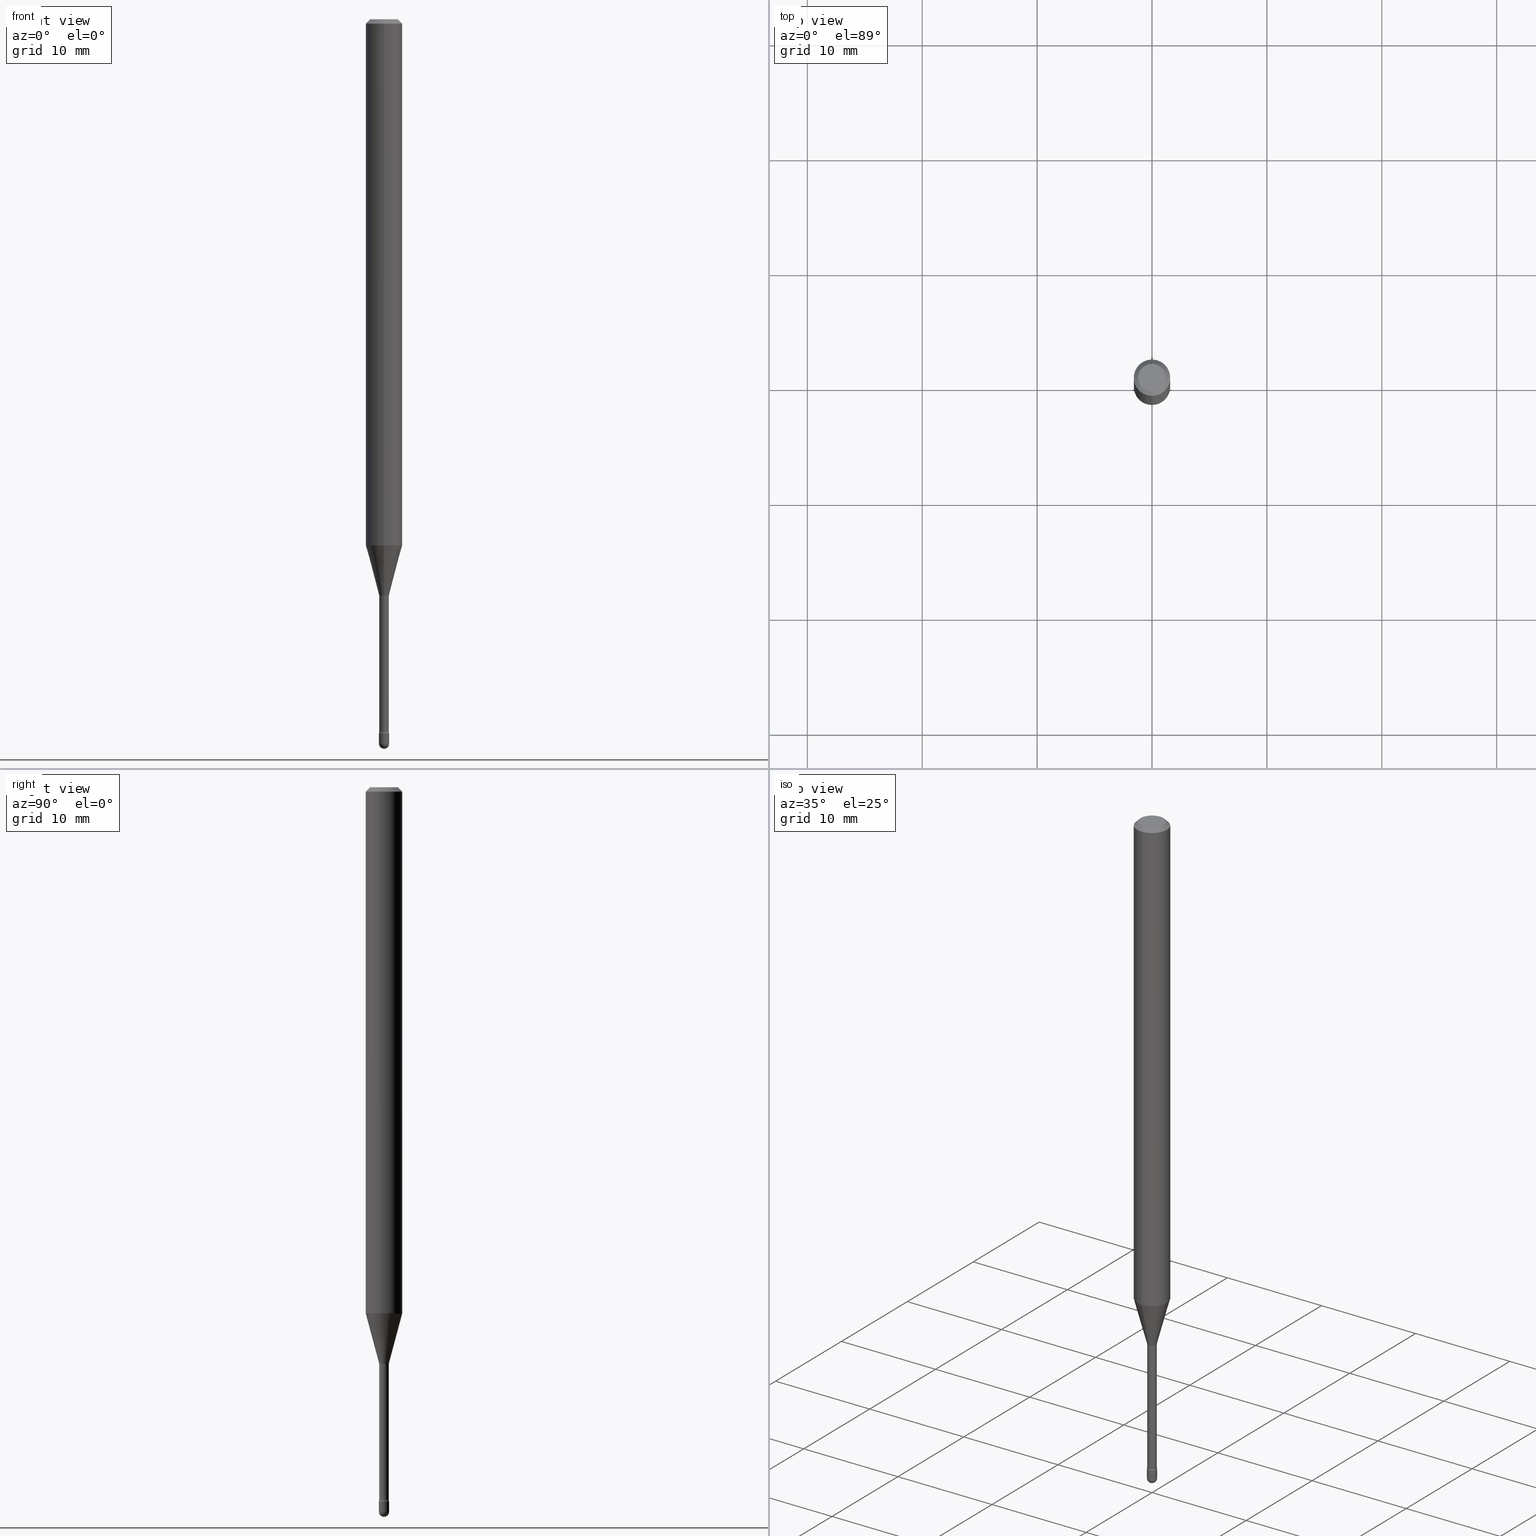
[diagram: canonical four-view strip — front | top / right | iso, engineering-drawing reading convention]
A machine part, canonical four-view strip (front | top / right | iso — engineering-drawing reading convention). The complete STEP part file that produces these views, byte-faithful:
ISO-10303-21;
HEADER;
FILE_DESCRIPTION (( 'STEP AP203' ),
    '1' );
FILE_NAME ('09449.STEP',
    '2024-04-09T23:17:30',
    ( '' ),
    ( '' ),
    'SwSTEP 2.0',
    'SolidWorks 2023',
    '' );
FILE_SCHEMA (( 'CONFIG_CONTROL_DESIGN' ));
ENDSEC;

DATA;
#1 = CARTESIAN_POINT ( 'NONE',  ( 4.409534162188952545E-29, -6.295606565068949190E-15, -1.803139060311453656 ) ) ;
#2 = LOCAL_TIME ( 19, 17, 30.00000000000000000, #509 ) ;
#3 = FACE_OUTER_BOUND ( 'NONE', #308, .T. ) ;
#4 = ORIENTED_EDGE ( 'NONE', *, *, #504, .F. ) ;
#5 = CC_DESIGN_PERSON_AND_ORGANIZATION_ASSIGNMENT ( #282, #158, ( #445 ) ) ;
#6 = DIRECTION ( 'NONE',  ( -6.982962677686265922E-15, -1.000000000000000000, 0.000000000000000000 ) ) ;
#7 = ORIENTED_EDGE ( 'NONE', *, *, #284, .T. ) ;
#8 = LINE ( 'NONE', #216, #560 ) ;
#9 = VERTEX_POINT ( 'NONE', #311 ) ;
#10 = CIRCLE ( 'NONE', #322, 0.01750000000000000860 ) ;
#11 = CIRCLE ( 'NONE', #288, 0.01500000000000002373 ) ;
#12 = DIRECTION ( 'NONE',  ( -6.982962677686265133E-15, -1.000000000000000000, 3.491470349481262275E-15 ) ) ;
#13 = ORIENTED_EDGE ( 'NONE', *, *, #284, .F. ) ;
#14 =( LENGTH_UNIT ( ) NAMED_UNIT ( * ) SI_UNIT ( $, .METRE. ) );
#15 = CARTESIAN_POINT ( 'NONE',  ( 6.070876311354602409E-29, -8.667602423678108373E-15, -2.482499999999999929 ) ) ;
#16 = CARTESIAN_POINT ( 'NONE',  ( -0.01750000000000000167, -8.481283651155627354E-15, -2.447000000000000064 ) ) ;
#17 = CIRCLE ( 'NONE', #352, 0.06250000000000000000 ) ;
#18 = CIRCLE ( 'NONE', #383, 0.01645000000000007567 ) ;
#19 = DIRECTION ( 'NONE',  ( 6.982962677686265922E-15, 1.000000000000000000, -3.483106191921935554E-15 ) ) ;
#20 = DIRECTION ( 'NONE',  ( 1.000000000000000000, -6.982962677686265922E-15, 4.876176775795936353E-29 ) ) ;
#21 = EDGE_CURVE ( 'NONE', #520, #548, #343, .T. ) ;
#22 = DIRECTION ( 'NONE',  ( -6.982962677686266711E-15, -1.000000000000000000, 0.000000000000000000 ) ) ;
#23 = ORIENTED_EDGE ( 'NONE', *, *, #204, .F. ) ;
#24 = DIRECTION ( 'NONE',  ( -2.445468806185136597E-29, 3.491481338843145583E-15, 1.000000000000000000 ) ) ;
#25 = ORIENTED_EDGE ( 'NONE', *, *, #51, .F. ) ;
#26 = VECTOR ( 'NONE', #508, 39.37007874015748143 ) ;
#27 = LOCAL_TIME ( 19, 17, 30.00000000000000000, #43 ) ;
#28 = PERSON_AND_ORGANIZATION ( #95, #334 ) ;
#29 = CC_DESIGN_DATE_AND_TIME_ASSIGNMENT ( #433, #563, ( #128 ) ) ;
#30 = UNCERTAINTY_MEASURE_WITH_UNIT (LENGTH_MEASURE( 1.000000000000000082E-05 ), #536, 'distance_accuracy_value', 'NONE');
#31 = ORIENTED_EDGE ( 'NONE', *, *, #71, .T. ) ;
#32 = DIRECTION ( 'NONE',  ( -6.982962677686265133E-15, -1.000000000000000000, 0.000000000000000000 ) ) ;
#33 = APPROVAL_STATUS ( 'not_yet_approved' ) ;
#34 = CARTESIAN_POINT ( 'NONE',  ( -0.01750000000000000167, 1.243449787580175444E-16, -8.608136407946085539E-31 ) ) ;
#35 = SHAPE_DEFINITION_REPRESENTATION ( #143, #426 ) ;
#36 = EDGE_CURVE ( 'NONE', #299, #368, #176, .T. ) ;
#37 = AXIS2_PLACEMENT_3D ( 'NONE', #154, #495, #546 ) ;
#38 = DIRECTION ( 'NONE',  ( -1.000000000000000000, 6.982962677686265922E-15, -4.883557194083112340E-29 ) ) ;
#39 = CIRCLE ( 'NONE', #451, 0.06250000000000000000 ) ;
#40 = PERSON_AND_ORGANIZATION ( #95, #334 ) ;
#41 = ADVANCED_FACE ( 'NONE', ( #232 ), #294, .T. ) ;
#42 = CARTESIAN_POINT ( 'NONE',  ( -4.287811248607203282E-16, -0.06250000000000005551, -0.01499999999999986587 ) ) ;
#43 = COORDINATED_UNIVERSAL_TIME_OFFSET ( 5, 0, .BEHIND. ) ;
#44 = VERTEX_POINT ( 'NONE', #227 ) ;
#45 = CARTESIAN_POINT ( 'NONE',  ( 2.023608659019657597E-45, -2.889053777927698999E-31, -8.274755406623474876E-17 ) ) ;
#46 = EDGE_LOOP ( 'NONE', ( #130, #552 ) ) ;
#47 = CARTESIAN_POINT ( 'NONE',  ( -1.169113584055446105E-44, 1.669184350826100908E-30, 4.780733988912460139E-16 ) ) ;
#48 = AXIS2_PLACEMENT_3D ( 'NONE', #67, #317, #276 ) ;
#49 = ORIENTED_EDGE ( 'NONE', *, *, #107, .T. ) ;
#50 = AXIS2_PLACEMENT_3D ( 'NONE', #47, #96, #485 ) ;
#51 = EDGE_CURVE ( 'NONE', #102, #446, #430, .T. ) ;
#52 = CARTESIAN_POINT ( 'NONE',  ( -0.01749999999999999820, -8.481283651155627354E-15, -2.482500000000000817 ) ) ;
#53 = ORIENTED_EDGE ( 'NONE', *, *, #340, .T. ) ;
#54 = CARTESIAN_POINT ( 'NONE',  ( 1.206146293953369389E-16, 0.01644999999999155124, -2.441486607215153537 ) ) ;
#55 = ORIENTED_EDGE ( 'NONE', *, *, #409, .T. ) ;
#56 = FACE_OUTER_BOUND ( 'NONE', #389, .T. ) ;
#57 = ORIENTED_EDGE ( 'NONE', *, *, #196, .F. ) ;
#58 = PRODUCT_DEFINITION_FORMATION_WITH_SPECIFIED_SOURCE ( 'ANY', '', #445, .NOT_KNOWN. ) ;
#59 = CIRCLE ( 'NONE', #484, 0.04749999999999999362 ) ;
#60 = DIRECTION ( 'NONE',  ( -2.445476480015523833E-29, 3.491470349481263853E-15, 1.000000000000000000 ) ) ;
#61 = CARTESIAN_POINT ( 'NONE',  ( 6.070876311354603530E-29, -8.667602423678111529E-15, -2.482500000000000817 ) ) ;
#62 = DIRECTION ( 'NONE',  ( -2.445476480015523833E-29, 3.491470349481263853E-15, 1.000000000000000000 ) ) ;
#63 = CARTESIAN_POINT ( 'NONE',  ( -1.169113584055446105E-44, 1.669184350826100908E-30, 4.780733988912460139E-16 ) ) ;
#64 = AXIS2_PLACEMENT_3D ( 'NONE', #117, #205, #121 ) ;
#65 = ADVANCED_FACE ( 'NONE', ( #275 ), #452, .T. ) ;
#66 = CIRCLE ( 'NONE', #314, 0.01696111260566398118 ) ;
#67 = CARTESIAN_POINT ( 'NONE',  ( 4.834630173357240824E-29, -6.902570577793290555E-15, -1.976974787463811056 ) ) ;
#68 = ORIENTED_EDGE ( 'NONE', *, *, #277, .T. ) ;
#69 = CARTESIAN_POINT ( 'NONE',  ( 2.023608659019657597E-45, -2.889053777927698999E-31, -8.274755406623474876E-17 ) ) ;
#70 = ORIENTED_EDGE ( 'NONE', *, *, #494, .T. ) ;
#71 = EDGE_CURVE ( 'NONE', #44, #545, #17, .T. ) ;
#72 = CARTESIAN_POINT ( 'NONE',  ( 2.823025816868956740E-16, 0.01696111260565709433, -1.973092501787273134 ) ) ;
#73 = COORDINATED_UNIVERSAL_TIME_OFFSET ( 5, 0, .BEHIND. ) ;
#74 = AXIS2_PLACEMENT_3D ( 'NONE', #522, #346, #89 ) ;
#75 = LINE ( 'NONE', #516, #549 ) ;
#76 = PERSON_AND_ORGANIZATION_ROLE ( 'creator' ) ;
#77 = VERTEX_POINT ( 'NONE', #416 ) ;
#78 = DIRECTION ( 'NONE',  ( -2.445468806185136597E-29, 3.491481338843145583E-15, 1.000000000000000000 ) ) ;
#79 = ADVANCED_FACE ( 'NONE', ( #497 ), #112, .T. ) ;
#80 = DIRECTION ( 'NONE',  ( -2.445476480015523833E-29, 3.491470349481263853E-15, 1.000000000000000000 ) ) ;
#81 = COORDINATED_UNIVERSAL_TIME_OFFSET ( 5, 0, .BEHIND. ) ;
#82 = ADVANCED_FACE ( 'NONE', ( #408 ), #541, .T. ) ;
#83 = AXIS2_PLACEMENT_3D ( 'NONE', #63, #151, #499 ) ;
#84 = LINE ( 'NONE', #34, #197 ) ;
#85 = CIRCLE ( 'NONE', #160, 0.01645000000000007567 ) ;
#86 = APPROVAL_DATE_TIME ( #379, #236 ) ;
#87 = CYLINDRICAL_SURFACE ( 'NONE', #50, 0.06250000000000000000 ) ;
#88 = ORIENTED_EDGE ( 'NONE', *, *, #272, .T. ) ;
#89 = DIRECTION ( 'NONE',  ( -6.982962677686265133E-15, -1.000000000000000000, 3.491470349481263853E-15 ) ) ;
#90 = ORIENTED_EDGE ( 'NONE', *, *, #327, .T. ) ;
#91 = DIRECTION ( 'NONE',  ( -2.445476480015523833E-29, 3.491470349481263853E-15, 1.000000000000000000 ) ) ;
#92 = VECTOR ( 'NONE', #518, 39.37007874015748143 ) ;
#93 = ORIENTED_EDGE ( 'NONE', *, *, #177, .F. ) ;
#94 = AXIS2_PLACEMENT_3D ( 'NONE', #375, #553, #328 ) ;
#95 = PERSON ( 'UNSPECIFIED', 'UNSPECIFIED', 'UNSPECIFIED', ('UNSPECIFIED'), ('UNSPECIFIED'), ('UNSPECIFIED') ) ;
#96 = DIRECTION ( 'NONE',  ( -2.445476480015523833E-29, 3.491470349481263853E-15, 1.000000000000000000 ) ) ;
#97 = EDGE_LOOP ( 'NONE', ( #461, #449, #201, #194 ) ) ;
#98 = EDGE_CURVE ( 'NONE', #545, #44, #538, .T. ) ;
#99 = DIRECTION ( 'NONE',  ( 7.105427357601001859E-15, 1.000000000000000000, 0.000000000000000000 ) ) ;
#100 = DIRECTION ( 'NONE',  ( -6.982962677686265133E-15, -1.000000000000000000, 0.000000000000000000 ) ) ;
#101 = ADVANCED_FACE ( 'NONE', ( #195 ), #106, .T. ) ;
#102 = VERTEX_POINT ( 'NONE', #111 ) ;
#103 = SECURITY_CLASSIFICATION ( '', '', #119 ) ;
#104 = CARTESIAN_POINT ( 'NONE',  ( -4.364351673553912750E-16, -0.06250000000000005551, -0.01499999999999986587 ) ) ;
#105 = DIRECTION ( 'NONE',  ( -2.445476480015523833E-29, 3.491470349481263853E-15, 1.000000000000000000 ) ) ;
#106 = CYLINDRICAL_SURFACE ( 'NONE', #511, 0.01750000000000000167 ) ;
#107 = EDGE_CURVE ( 'NONE', #102, #304, #10, .T. ) ;
#108 = CARTESIAN_POINT ( 'NONE',  ( 3.668214720023305841E-31, -5.237205524221924868E-17, -0.01500000000000008271 ) ) ;
#109 = ORIENTED_EDGE ( 'NONE', *, *, #556, .T. ) ;
#110 = AXIS2_PLACEMENT_3D ( 'NONE', #365, #316, #410 ) ;
#111 = CARTESIAN_POINT ( 'NONE',  ( 6.114420285965873807E-29, -8.727631781158610915E-15, -2.500000000000000000 ) ) ;
#112 = CYLINDRICAL_SURFACE ( 'NONE', #212, 0.01750000000000000167 ) ;
#113 = ORIENTED_EDGE ( 'NONE', *, *, #107, .F. ) ;
#114 = ORIENTED_EDGE ( 'NONE', *, *, #462, .F. ) ;
#115 = CLOSED_SHELL ( 'NONE', ( #79, #562, #436, #247, #101 ) ) ;
#116 = AXIS2_PLACEMENT_3D ( 'NONE', #398, #348, #6 ) ;
#117 = CARTESIAN_POINT ( 'NONE',  ( 2.234656903966115026E-16, 0.03144999999999151946, -2.441486607215153537 ) ) ;
#118 = DIRECTION ( 'NONE',  ( 1.000000000000000000, -6.982962677686248567E-15, 0.000000000000000000 ) ) ;
#119 = SECURITY_CLASSIFICATION_LEVEL ( 'unclassified' ) ;
#120 = CC_DESIGN_PERSON_AND_ORGANIZATION_ASSIGNMENT ( #329, #337, ( #58 ) ) ;
#121 = DIRECTION ( 'NONE',  ( 7.105427357601005014E-15, 1.000000000000000000, 0.000000000000000000 ) ) ;
#122 = APPLICATION_PROTOCOL_DEFINITION ( 'international standard', 'config_control_design', 1994, #498 ) ;
#123 = AXIS2_PLACEMENT_3D ( 'NONE', #338, #557, #118 ) ;
#124 = TOROIDAL_SURFACE ( 'NONE', #179, 0.03144999999999999879, 0.01500000000000002373 ) ;
#125 = DIRECTION ( 'NONE',  ( -6.982962677686265922E-15, -1.000000000000000000, 4.370956789862821150E-15 ) ) ;
#126 = VERTEX_POINT ( 'NONE', #16 ) ;
#127 = CC_DESIGN_APPROVAL ( #236, ( #103 ) ) ;
#128 = PRODUCT_DEFINITION ( 'UNKNOWN', '', #58, #465 ) ;
#129 = CARTESIAN_POINT ( 'NONE',  ( 4.440892098501065952E-16, 0.06249999999999369948, -1.803139060311453878 ) ) ;
#130 = ORIENTED_EDGE ( 'NONE', *, *, #404, .F. ) ;
#131 = DIRECTION ( 'NONE',  ( -2.445476480015523833E-29, 3.491470349481263853E-15, 1.000000000000000000 ) ) ;
#132 = ORIENTED_EDGE ( 'NONE', *, *, #98, .F. ) ;
#133 = CARTESIAN_POINT ( 'NONE',  ( 5.984062168735030320E-29, -8.543654836149177676E-15, -2.447000000000000064 ) ) ;
#134 = AXIS2_PLACEMENT_3D ( 'NONE', #432, #468, #245 ) ;
#135 = ORIENTED_EDGE ( 'NONE', *, *, #192, .T. ) ;
#136 = EDGE_CURVE ( 'NONE', #326, #77, #371, .T. ) ;
#137 = CARTESIAN_POINT ( 'NONE',  ( 5.970598074217557252E-29, -8.524378097747317982E-15, -2.441486607215153537 ) ) ;
#138 = ORIENTED_EDGE ( 'NONE', *, *, #327, .F. ) ;
#139 = ADVANCED_FACE ( 'NONE', ( #460 ), #287, .T. ) ;
#140 = ORIENTED_EDGE ( 'NONE', *, *, #447, .T. ) ;
#141 = DIRECTION ( 'NONE',  ( -6.982962677686265133E-15, -1.000000000000000000, 0.000000000000000000 ) ) ;
#142 = DIRECTION ( 'NONE',  ( -6.982962677686265133E-15, -1.000000000000000000, 0.000000000000000000 ) ) ;
#143 = PRODUCT_DEFINITION_SHAPE ( 'NONE', 'NONE',  #128 ) ;
#144 = AXIS2_PLACEMENT_3D ( 'NONE', #313, #453, #19 ) ;
#145 = FACE_OUTER_BOUND ( 'NONE', #459, .T. ) ;
#146 = ADVANCED_FACE ( 'NONE', ( #186 ), #458, .F. ) ;
#147 = MANIFOLD_SOLID_BREP ( 'Body-Move/Copy2[2]', #262 ) ;
#148 = LENGTH_MEASURE_WITH_UNIT ( LENGTH_MEASURE( 0.02539999999999999897 ), #14 );
#149 = CARTESIAN_POINT ( 'NONE',  ( -3.773273898774340269E-16, -0.04749999999999999362, 8.309728753412527685E-17 ) ) ;
#150 = ORIENTED_EDGE ( 'NONE', *, *, #504, .T. ) ;
#151 = DIRECTION ( 'NONE',  ( -2.445476480015523833E-29, 3.491470349481263853E-15, 1.000000000000000000 ) ) ;
#152 = AXIS2_PLACEMENT_3D ( 'NONE', #325, #105, #280 ) ;
#153 = ORIENTED_EDGE ( 'NONE', *, *, #535, .T. ) ;
#154 = CARTESIAN_POINT ( 'NONE',  ( 3.668214720023305841E-31, -5.237205524221924868E-17, -0.01500000000000008271 ) ) ;
#155 = ORIENTED_EDGE ( 'NONE', *, *, #473, .T. ) ;
#156 = CARTESIAN_POINT ( 'NONE',  ( 4.364351673553919652E-16, 0.06249999999999995143, -0.01500000000000030129 ) ) ;
#157 = CARTESIAN_POINT ( 'NONE',  ( 3.840629472727447874E-16, 0.04749999999999999362, -2.485923956665947867E-16 ) ) ;
#158 = PERSON_AND_ORGANIZATION_ROLE ( 'design_owner' ) ;
#159 = AXIS2_PLACEMENT_3D ( 'NONE', #534, #489, #100 ) ;
#160 = AXIS2_PLACEMENT_3D ( 'NONE', #137, #488, #394 ) ;
#161 = EDGE_CURVE ( 'NONE', #548, #520, #456, .T. ) ;
#162 = CARTESIAN_POINT ( 'NONE',  ( -2.196141762131736265E-16, -0.03145000000000856832, -2.441486607215153537 ) ) ;
#163 = APPROVAL_DATE_TIME ( #506, #527 ) ;
#164 = CARTESIAN_POINT ( 'NONE',  ( 6.070876311354603530E-29, -8.667602423678111529E-15, -2.482500000000000817 ) ) ;
#165 = FACE_OUTER_BOUND ( 'NONE', #355, .T. ) ;
#166 = ORIENTED_EDGE ( 'NONE', *, *, #404, .T. ) ;
#167 = ADVANCED_FACE ( 'NONE', ( #454 ), #529, .F. ) ;
#168 = AXIS2_PLACEMENT_3D ( 'NONE', #291, #78, #202 ) ;
#169 = CARTESIAN_POINT ( 'NONE',  ( 5.970598074217557252E-29, -8.524378097747317982E-15, -2.441486607215153537 ) ) ;
#170 = DIRECTION ( 'NONE',  ( -2.445476480015523833E-29, 3.491470349481263853E-15, 1.000000000000000000 ) ) ;
#171 = PLANE ( 'NONE',  #263 ) ;
#172 = ORIENTED_EDGE ( 'NONE', *, *, #21, .T. ) ;
#173 = CARTESIAN_POINT ( 'NONE',  ( 5.984080946597987231E-29, -8.543627945180652230E-15, -2.447000000000000064 ) ) ;
#174 = EDGE_LOOP ( 'NONE', ( #400, #55, #357, #349 ) ) ;
#175 = CARTESIAN_POINT ( 'NONE',  ( 6.070876311354603530E-29, -8.667602423678111529E-15, -2.482500000000000817 ) ) ;
#176 = CIRCLE ( 'NONE', #478, 0.06250000000000000000 ) ;
#177 = EDGE_CURVE ( 'NONE', #270, #178, #361, .T. ) ;
#178 = VERTEX_POINT ( 'NONE', #149 ) ;
#179 = AXIS2_PLACEMENT_3D ( 'NONE', #248, #425, #281 ) ;
#180 = DIRECTION ( 'NONE',  ( 1.839019923739598738E-15, 0.2588190451025247363, 0.9659258262890673130 ) ) ;
#181 = ORIENTED_EDGE ( 'NONE', *, *, #36, .F. ) ;
#182 = CARTESIAN_POINT ( 'NONE',  ( -4.364351673553916201E-16, -0.06250000000000000000, 6.962902957338251033E-16 ) ) ;
#183 = CARTESIAN_POINT ( 'NONE',  ( 4.825151306015764472E-29, -6.888993966774070891E-15, -1.973092501787273134 ) ) ;
#184 = ADVANCED_FACE ( 'NONE', ( #207 ), #550, .F. ) ;
#185 =( NAMED_UNIT ( * ) PLANE_ANGLE_UNIT ( ) SI_UNIT ( $, .RADIAN. ) );
#186 = FACE_OUTER_BOUND ( 'NONE', #46, .T. ) ;
#187 = AXIS2_PLACEMENT_3D ( 'NONE', #162, #38, #32 ) ;
#188 = DIRECTION ( 'NONE',  ( 1.000000000000000000, -6.982962677686305365E-15, 0.000000000000000000 ) ) ;
#189 = DIRECTION ( 'NONE',  ( -2.445476480015523833E-29, 3.491470349481263853E-15, 1.000000000000000000 ) ) ;
#190 = ORIENTED_EDGE ( 'NONE', *, *, #228, .F. ) ;
#191 = APPLICATION_CONTEXT ( 'configuration controlled 3d designs of mechanical parts and assemblies' ) ;
#192 = EDGE_CURVE ( 'NONE', #443, #548, #75, .T. ) ;
#193 = DIRECTION ( 'NONE',  ( -6.982962677686265922E-15, -1.000000000000000000, 3.491470349481263853E-15 ) ) ;
#194 = ORIENTED_EDGE ( 'NONE', *, *, #473, .F. ) ;
#195 = FACE_OUTER_BOUND ( 'NONE', #434, .T. ) ;
#196 = EDGE_CURVE ( 'NONE', #9, #126, #333, .T. ) ;
#197 = VECTOR ( 'NONE', #387, 39.37007874015748143 ) ;
#198 = CIRCLE ( 'NONE', #116, 0.01750000000000000167 ) ;
#199 = EDGE_LOOP ( 'NONE', ( #437, #88, #224, #13 ) ) ;
#200 = APPROVAL_ROLE ( '' ) ;
#201 = ORIENTED_EDGE ( 'NONE', *, *, #161, .T. ) ;
#202 = DIRECTION ( 'NONE',  ( 1.000000000000000000, -6.982962677686248567E-15, 0.000000000000000000 ) ) ;
#203 = CALENDAR_DATE ( 2024, 9, 4 ) ;
#204 = EDGE_CURVE ( 'NONE', #377, #126, #84, .T. ) ;
#205 = DIRECTION ( 'NONE',  ( 1.000000000000000000, -7.105427357601001070E-15, 4.926315373961213583E-29 ) ) ;
#206 = AXIS2_PLACEMENT_3D ( 'NONE', #537, #235, #142 ) ;
#207 = FACE_OUTER_BOUND ( 'NONE', #199, .T. ) ;
#208 = CARTESIAN_POINT ( 'NONE',  ( -1.222018468594496598E-16, -0.01750000000000852610, -2.447000000000000064 ) ) ;
#209 = ORIENTED_EDGE ( 'NONE', *, *, #234, .F. ) ;
#210 = CARTESIAN_POINT ( 'NONE',  ( 2.234656903965998176E-16, 0.03144999999999309459, -1.976974787463811056 ) ) ;
#211 = ORIENTED_EDGE ( 'NONE', *, *, #204, .T. ) ;
#212 = AXIS2_PLACEMENT_3D ( 'NONE', #551, #24, #407 ) ;
#213 = APPROVAL_PERSON_ORGANIZATION ( #475, #236, #332 ) ;
#214 = CARTESIAN_POINT ( 'NONE',  ( 4.440892098500625669E-16, 0.06250000000000000000, 2.598565020486670724E-16 ) ) ;
#215 = EDGE_LOOP ( 'NONE', ( #220, #93, #415, #31 ) ) ;
#216 = CARTESIAN_POINT ( 'NONE',  ( 1.205159535236843090E-16, 0.01696111260565709086, -1.973092501787273134 ) ) ;
#217 = EDGE_LOOP ( 'NONE', ( #439, #259, #132, #417 ) ) ;
#218 = CC_DESIGN_PERSON_AND_ORGANIZATION_ASSIGNMENT ( #381, #76, ( #58 ) ) ;
#219 = DIRECTION ( 'NONE',  ( -1.000000000000000000, 6.982962677686265922E-15, -4.883557194083112340E-29 ) ) ;
#220 = ORIENTED_EDGE ( 'NONE', *, *, #277, .F. ) ;
#221 = CARTESIAN_POINT ( 'NONE',  ( -1.169113584055446105E-44, 1.669184350826100908E-30, 4.780733988912460139E-16 ) ) ;
#222 = AXIS2_PLACEMENT_3D ( 'NONE', #335, #80, #561 ) ;
#223 = AXIS2_PLACEMENT_3D ( 'NONE', #69, #455, #544 ) ;
#224 = ORIENTED_EDGE ( 'NONE', *, *, #366, .T. ) ;
#225 = CC_DESIGN_APPROVAL ( #527, ( #128 ) ) ;
#226 = DIRECTION ( 'NONE',  ( -2.445476480015523833E-29, 3.491470349481263853E-15, 1.000000000000000000 ) ) ;
#227 = CARTESIAN_POINT ( 'NONE',  ( 4.440892098501069896E-16, 0.06249999999999995143, -0.01500000000000030129 ) ) ;
#228 = EDGE_CURVE ( 'NONE', #304, #377, #440, .T. ) ;
#229 = SPHERICAL_SURFACE ( 'NONE', #110, 0.01750000000000000860 ) ;
#230 = DIRECTION ( 'NONE',  ( -1.000000000000000000, 7.105427357601001070E-15, -4.926315508542082329E-29 ) ) ;
#231 = CARTESIAN_POINT ( 'NONE',  ( 0.01750000000000000167, -1.222018468595096625E-16, 8.533309357642889039E-31 ) ) ;
#232 = FACE_OUTER_BOUND ( 'NONE', #215, .T. ) ;
#233 = CONICAL_SURFACE ( 'NONE', #558, 0.01696111260566398118, 0.2617993877991500740 ) ;
#234 = EDGE_CURVE ( 'NONE', #270, #44, #240, .T. ) ;
#235 = DIRECTION ( 'NONE',  ( -2.445476480015523833E-29, 3.491470349481263853E-15, 1.000000000000000000 ) ) ;
#236 = APPROVAL ( #33, 'UNSPECIFIED' ) ;
#237 = EDGE_CURVE ( 'NONE', #126, #9, #418, .T. ) ;
#238 = CARTESIAN_POINT ( 'NONE',  ( 6.070876311354602409E-29, -8.667602423678108373E-15, -2.482499999999999929 ) ) ;
#239 = EDGE_LOOP ( 'NONE', ( #274, #211, #57, #391, #90 ) ) ;
#240 = LINE ( 'NONE', #156, #26 ) ;
#241 = APPLICATION_PROTOCOL_DEFINITION ( 'international standard', 'config_control_design', 1994, #191 ) ;
#242 = AXIS2_PLACEMENT_3D ( 'NONE', #321, #367, #278 ) ;
#243 = CIRCLE ( 'NONE', #353, 0.01500000000000002373 ) ;
#244 = ORIENTED_EDGE ( 'NONE', *, *, #98, .T. ) ;
#245 = DIRECTION ( 'NONE',  ( 6.982962677686265922E-15, 1.000000000000000000, 0.000000000000000000 ) ) ;
#246 = PERSON_AND_ORGANIZATION_ROLE ( 'creator' ) ;
#247 = ADVANCED_FACE ( 'NONE', ( #285 ), #559, .T. ) ;
#248 = CARTESIAN_POINT ( 'NONE',  ( 4.834630173357240824E-29, -6.902570577793290555E-15, -1.976974787463811056 ) ) ;
#249 = PERSON_AND_ORGANIZATION ( #95, #334 ) ;
#250 = LINE ( 'NONE', #42, #382 ) ;
#251 = APPROVAL_STATUS ( 'not_yet_approved' ) ;
#252 = AXIS2_PLACEMENT_3D ( 'NONE', #318, #60, #505 ) ;
#253 = AXIS2_PLACEMENT_3D ( 'NONE', #464, #293, #470 ) ;
#254 = FACE_OUTER_BOUND ( 'NONE', #395, .T. ) ;
#255 = PERSON_AND_ORGANIZATION ( #95, #334 ) ;
#256 = ORIENTED_EDGE ( 'NONE', *, *, #556, .F. ) ;
#257 = ADVANCED_FACE ( 'NONE', ( #254 ), #233, .T. ) ;
#258 = DIRECTION ( 'NONE',  ( -2.445468806185136597E-29, 3.491481338843145583E-15, 1.000000000000000000 ) ) ;
#259 = ORIENTED_EDGE ( 'NONE', *, *, #399, .T. ) ;
#260 = DIRECTION ( 'NONE',  ( -6.982962677686265922E-15, -1.000000000000000000, 0.000000000000000000 ) ) ;
#261 = ORIENTED_EDGE ( 'NONE', *, *, #272, .F. ) ;
#262 = CLOSED_SHELL ( 'NONE', ( #167, #82, #184, #543, #358, #257, #139, #65, #41, #296, #146, #336, #512, #303 ) ) ;
#263 = AXIS2_PLACEMENT_3D ( 'NONE', #133, #310, #479 ) ;
#264 = DIRECTION ( 'NONE',  ( -6.982962677686266711E-15, -1.000000000000000000, 0.000000000000000000 ) ) ;
#265 = EDGE_LOOP ( 'NONE', ( #114, #510, #53, #555 ) ) ;
#266 = EDGE_CURVE ( 'NONE', #324, #520, #378, .T. ) ;
#267 = FACE_OUTER_BOUND ( 'NONE', #491, .T. ) ;
#268 = ORIENTED_EDGE ( 'NONE', *, *, #266, .F. ) ;
#269 = DIRECTION ( 'NONE',  ( -2.445476480015523833E-29, 3.491470349481263853E-15, 1.000000000000000000 ) ) ;
#270 = VERTEX_POINT ( 'NONE', #157 ) ;
#271 = AXIS2_PLACEMENT_3D ( 'NONE', #164, #476, #419 ) ;
#272 = EDGE_CURVE ( 'NONE', #443, #397, #305, .T. ) ;
#273 = APPROVAL_PERSON_ORGANIZATION ( #40, #392, #554 ) ;
#274 = ORIENTED_EDGE ( 'NONE', *, *, #228, .T. ) ;
#275 = FACE_OUTER_BOUND ( 'NONE', #174, .T. ) ;
#276 = DIRECTION ( 'NONE',  ( -6.982962677686265133E-15, -1.000000000000000000, 3.491470349481263853E-15 ) ) ;
#277 = EDGE_CURVE ( 'NONE', #178, #545, #250, .T. ) ;
#278 = DIRECTION ( 'NONE',  ( -6.982962677686265133E-15, -1.000000000000000000, 3.491470349481262275E-15 ) ) ;
#279 = ORIENTED_EDGE ( 'NONE', *, *, #177, .T. ) ;
#280 = DIRECTION ( 'NONE',  ( -6.982962677686266711E-15, -1.000000000000000000, 0.000000000000000000 ) ) ;
#281 = DIRECTION ( 'NONE',  ( -6.982962677686265133E-15, -1.000000000000000000, 3.491470349481263853E-15 ) ) ;
#282 = PERSON_AND_ORGANIZATION ( #95, #334 ) ;
#283 = VERTEX_POINT ( 'NONE', #208 ) ;
#284 = EDGE_CURVE ( 'NONE', #324, #283, #306, .T. ) ;
#285 = FACE_OUTER_BOUND ( 'NONE', #532, .T. ) ;
#286 = DATE_AND_TIME ( #388, #2 ) ;
#287 = CONICAL_SURFACE ( 'NONE', #411, 0.01696111260566398118, 0.2617993877991500740 ) ;
#288 = AXIS2_PLACEMENT_3D ( 'NONE', #302, #219, #354 ) ;
#289 = ORIENTED_EDGE ( 'NONE', *, *, #237, .F. ) ;
#290 = DIRECTION ( 'NONE',  ( 2.445476480015523553E-29, -3.491470349481263853E-15, -1.000000000000000000 ) ) ;
#291 = CARTESIAN_POINT ( 'NONE',  ( 5.984062168735030320E-29, -8.543654836149177676E-15, -2.447000000000000064 ) ) ;
#292 = CARTESIAN_POINT ( 'NONE',  ( -4.364351673553477397E-16, -0.06250000000000631439, -1.803139060311453434 ) ) ;
#293 = DIRECTION ( 'NONE',  ( 0.000000000000000000, 0.000000000000000000, 1.000000000000000000 ) ) ;
#294 = CONICAL_SURFACE ( 'NONE', #37, 0.06250000000000000000, 0.7853981633974483900 ) ;
#295 = LOCAL_TIME ( 19, 17, 30.00000000000000000, #376 ) ;
#296 = ADVANCED_FACE ( 'NONE', ( #385 ), #331, .F. ) ;
#297 = CIRCLE ( 'NONE', #373, 0.01749999999999999820 ) ;
#298 = CARTESIAN_POINT ( 'NONE',  ( -1.243449787579568514E-16, -0.01750000000000867181, -2.482500000000000817 ) ) ;
#299 = VERTEX_POINT ( 'NONE', #292 ) ;
#300 = CARTESIAN_POINT ( 'NONE',  ( -1.184388162973373725E-16, -0.01696111260567087151, -1.973092501787273134 ) ) ;
#301 = ORIENTED_EDGE ( 'NONE', *, *, #340, .F. ) ;
#302 = CARTESIAN_POINT ( 'NONE',  ( -2.196141762131846952E-16, -0.03145000000000690299, -1.976974787463811056 ) ) ;
#303 = ADVANCED_FACE ( 'NONE', ( #165 ), #124, .F. ) ;
#304 = VERTEX_POINT ( 'NONE', #519 ) ;
#305 = CIRCLE ( 'NONE', #64, 0.01499999999999996302 ) ;
#306 = CIRCLE ( 'NONE', #187, 0.01499999999999996302 ) ;
#307 = DIRECTION ( 'NONE',  ( -6.982962677686266711E-15, -1.000000000000000000, 3.491470349481264247E-15 ) ) ;
#308 = EDGE_LOOP ( 'NONE', ( #528, #483 ) ) ;
#309 = DIMENSIONAL_EXPONENTS ( 1.000000000000000000, 0.000000000000000000, 0.000000000000000000, 0.000000000000000000, 0.000000000000000000, 0.000000000000000000, 0.000000000000000000 ) ;
#310 = DIRECTION ( 'NONE',  ( -2.438088387897960049E-29, 3.491481338843145188E-15, 1.000000000000000000 ) ) ;
#311 = CARTESIAN_POINT ( 'NONE',  ( 0.01750000000000000167, -8.665856683008687659E-15, -2.447000000000000064 ) ) ;
#312 = ORIENTED_EDGE ( 'NONE', *, *, #21, .F. ) ;
#313 = CARTESIAN_POINT ( 'NONE',  ( 3.668214720023305841E-31, -5.237205524221924868E-17, -0.01500000000000008271 ) ) ;
#314 = AXIS2_PLACEMENT_3D ( 'NONE', #482, #91, #264 ) ;
#315 = DIRECTION ( 'NONE',  ( -2.445468806185136597E-29, 3.491481338843145583E-15, 1.000000000000000000 ) ) ;
#316 = DIRECTION ( 'NONE',  ( -1.000000000000000000, 6.982962677686265922E-15, -4.883557194083112340E-29 ) ) ;
#317 = DIRECTION ( 'NONE',  ( -2.445476480015523833E-29, 3.491470349481263853E-15, 1.000000000000000000 ) ) ;
#318 = CARTESIAN_POINT ( 'NONE',  ( 3.668214720023305841E-31, -5.237205524221924868E-17, -0.01500000000000008271 ) ) ;
#319 = CC_DESIGN_PERSON_AND_ORGANIZATION_ASSIGNMENT ( #249, #246, ( #128 ) ) ;
#320 = EDGE_LOOP ( 'NONE', ( #565, #68, #244, #209 ) ) ;
#321 = CARTESIAN_POINT ( 'NONE',  ( -1.169113584055446105E-44, 1.669184350826100908E-30, 4.780733988912460139E-16 ) ) ;
#322 = AXIS2_PLACEMENT_3D ( 'NONE', #15, #414, #372 ) ;
#323 = AXIS2_PLACEMENT_3D ( 'NONE', #175, #258, #435 ) ;
#324 = VERTEX_POINT ( 'NONE', #463 ) ;
#325 = CARTESIAN_POINT ( 'NONE',  ( 4.825151306015764472E-29, -6.888993966774070891E-15, -1.973092501787273134 ) ) ;
#326 = VERTEX_POINT ( 'NONE', #72 ) ;
#327 = EDGE_CURVE ( 'NONE', #466, #304, #362, .T. ) ;
#328 = DIRECTION ( 'NONE',  ( 1.000000000000000000, -6.982962677686305365E-15, 0.000000000000000000 ) ) ;
#329 = PERSON_AND_ORGANIZATION ( #95, #334 ) ;
#330 = ORIENTED_EDGE ( 'NONE', *, *, #192, .F. ) ;
#331 = PLANE ( 'NONE',  #530 ) ;
#332 = APPROVAL_ROLE ( '' ) ;
#333 = CIRCLE ( 'NONE', #123, 0.01750000000000000167 ) ;
#334 = ORGANIZATION ( 'UNSPECIFIED', 'UNSPECIFIED', '' ) ;
#335 = CARTESIAN_POINT ( 'NONE',  ( 5.970579338663442113E-29, -8.524404928127174921E-15, -2.441486607215153537 ) ) ;
#336 = ADVANCED_FACE ( 'NONE', ( #267 ), #502, .F. ) ;
#337 = PERSON_AND_ORGANIZATION_ROLE ( 'design_supplier' ) ;
#338 = CARTESIAN_POINT ( 'NONE',  ( 5.984062168735030320E-29, -8.543654836149177676E-15, -2.447000000000000064 ) ) ;
#339 = APPROVAL_STATUS ( 'not_yet_approved' ) ;
#340 = EDGE_CURVE ( 'NONE', #77, #299, #444, .T. ) ;
#341 = CARTESIAN_POINT ( 'NONE',  ( 4.825151306015764472E-29, -6.888993966774070891E-15, -1.973092501787273134 ) ) ;
#342 = ORIENTED_EDGE ( 'NONE', *, *, #427, .T. ) ;
#343 = CIRCLE ( 'NONE', #159, 0.01644999999999999934 ) ;
#344 = MANIFOLD_SOLID_BREP ( 'Body-Move/Copy2[1]', #115 ) ;
#345 = CC_DESIGN_APPROVAL ( #392, ( #58 ) ) ;
#346 = DIRECTION ( 'NONE',  ( -2.445476480015523833E-29, 3.491470349481263853E-15, 1.000000000000000000 ) ) ;
#347 = ORIENTED_EDGE ( 'NONE', *, *, #266, .T. ) ;
#348 = DIRECTION ( 'NONE',  ( -2.445476480015523833E-29, 3.491470349481263853E-15, 1.000000000000000000 ) ) ;
#349 = ORIENTED_EDGE ( 'NONE', *, *, #71, .F. ) ;
#350 = FACE_OUTER_BOUND ( 'NONE', #217, .T. ) ;
#351 = ORIENTED_EDGE ( 'NONE', *, *, #494, .F. ) ;
#352 = AXIS2_PLACEMENT_3D ( 'NONE', #108, #62, #413 ) ;
#353 = AXIS2_PLACEMENT_3D ( 'NONE', #210, #442, #99 ) ;
#354 = DIRECTION ( 'NONE',  ( -6.982962677686266711E-15, -1.000000000000000000, 0.000000000000000000 ) ) ;
#355 = EDGE_LOOP ( 'NONE', ( #374, #351, #155, #172 ) ) ;
#356 = DIRECTION ( 'NONE',  ( -1.807323732225328562E-15, -0.2588190451025179639, 0.9659258262890690894 ) ) ;
#357 = ORIENTED_EDGE ( 'NONE', *, *, #566, .T. ) ;
#358 = ADVANCED_FACE ( 'NONE', ( #350 ), #87, .T. ) ;
#359 = CARTESIAN_POINT ( 'NONE',  ( 1.168842800325963800E-16, 0.01644999999999309515, -1.976974787463811056 ) ) ;
#360 = CARTESIAN_POINT ( 'NONE',  ( 1.222018468595694927E-16, 0.01749999999999145642, -2.447000000000000064 ) ) ;
#361 = CIRCLE ( 'NONE', #223, 0.04749999999999999362 ) ;
#362 = CIRCLE ( 'NONE', #94, 0.01749999999999999820 ) ;
#363 = DIRECTION ( 'NONE',  ( -2.445476480015523553E-29, 3.491470349481263853E-15, 1.000000000000000000 ) ) ;
#364 = LOCAL_TIME ( 19, 17, 30.00000000000000000, #81 ) ;
#365 = CARTESIAN_POINT ( 'NONE',  ( 6.070876311354602409E-29, -8.667602423678108373E-15, -2.482499999999999929 ) ) ;
#366 = EDGE_CURVE ( 'NONE', #397, #283, #198, .T. ) ;
#367 = DIRECTION ( 'NONE',  ( -2.445476480015523833E-29, 3.491470349481263853E-15, 1.000000000000000000 ) ) ;
#368 = VERTEX_POINT ( 'NONE', #129 ) ;
#369 = DIRECTION ( 'NONE',  ( -7.105427357601001859E-15, -1.000000000000000000, 0.000000000000000000 ) ) ;
#370 = EDGE_LOOP ( 'NONE', ( #342, #135, #312, #268 ) ) ;
#371 = CIRCLE ( 'NONE', #152, 0.01696111260566398118 ) ;
#372 = DIRECTION ( 'NONE',  ( 6.982962677686265922E-15, 1.000000000000000000, 0.000000000000000000 ) ) ;
#373 = AXIS2_PLACEMENT_3D ( 'NONE', #61, #542, #188 ) ;
#374 = ORIENTED_EDGE ( 'NONE', *, *, #500, .F. ) ;
#375 = CARTESIAN_POINT ( 'NONE',  ( 6.070876311354603530E-29, -8.667602423678111529E-15, -2.482500000000000817 ) ) ;
#376 = COORDINATED_UNIVERSAL_TIME_OFFSET ( 5, 0, .BEHIND. ) ;
#377 = VERTEX_POINT ( 'NONE', #52 ) ;
#378 = LINE ( 'NONE', #423, #92 ) ;
#379 = DATE_AND_TIME ( #203, #364 ) ;
#380 = DIRECTION ( 'NONE',  ( -2.445476480015523833E-29, 3.491470349481263853E-15, 1.000000000000000000 ) ) ;
#381 = PERSON_AND_ORGANIZATION ( #95, #334 ) ;
#382 = VECTOR ( 'NONE', #428, 39.37007874015748143 ) ;
#383 = AXIS2_PLACEMENT_3D ( 'NONE', #169, #226, #141 ) ;
#384 = CC_DESIGN_DATE_AND_TIME_ASSIGNMENT ( #286, #424, ( #103 ) ) ;
#385 = FACE_OUTER_BOUND ( 'NONE', #525, .T. ) ;
#386 = CALENDAR_DATE ( 2024, 9, 4 ) ;
#387 = DIRECTION ( 'NONE',  ( -2.445468806185136877E-29, 3.491481338843145188E-15, 1.000000000000000000 ) ) ;
#388 = CALENDAR_DATE ( 2024, 9, 4 ) ;
#389 = EDGE_LOOP ( 'NONE', ( #330, #153, #347, #481 ) ) ;
#390 = CARTESIAN_POINT ( 'NONE',  ( -1.148697360478907093E-16, -0.01645000000000690007, -1.976974787463811056 ) ) ;
#391 = ORIENTED_EDGE ( 'NONE', *, *, #547, .F. ) ;
#392 = APPROVAL ( #251, 'UNSPECIFIED' ) ;
#393 = VECTOR ( 'NONE', #533, 39.37007874015748143 ) ;
#394 = DIRECTION ( 'NONE',  ( -6.982962677686265133E-15, -1.000000000000000000, 0.000000000000000000 ) ) ;
#395 = EDGE_LOOP ( 'NONE', ( #70, #507, #181, #301 ) ) ;
#396 = CYLINDRICAL_SURFACE ( 'NONE', #521, 0.01645000000000003751 ) ;
#397 = VERTEX_POINT ( 'NONE', #438 ) ;
#398 = CARTESIAN_POINT ( 'NONE',  ( 5.984080946597987231E-29, -8.543627945180652230E-15, -2.447000000000000064 ) ) ;
#399 = EDGE_CURVE ( 'NONE', #368, #44, #531, .T. ) ;
#400 = ORIENTED_EDGE ( 'NONE', *, *, #399, .F. ) ;
#401 = AXIS2_PLACEMENT_3D ( 'NONE', #173, #269, #260 ) ;
#402 = DIRECTION ( 'NONE',  ( -2.445476480015523833E-29, 3.491470349481263853E-15, 1.000000000000000000 ) ) ;
#403 = CC_DESIGN_SECURITY_CLASSIFICATION ( #103, ( #58 ) ) ;
#404 = EDGE_CURVE ( 'NONE', #283, #397, #421, .T. ) ;
#405 = ORIENTED_EDGE ( 'NONE', *, *, #547, .T. ) ;
#406 = FACE_OUTER_BOUND ( 'NONE', #320, .T. ) ;
#407 = DIRECTION ( 'NONE',  ( 1.000000000000000000, -6.982962677686265922E-15, 4.876176775795936353E-29 ) ) ;
#408 = FACE_OUTER_BOUND ( 'NONE', #370, .T. ) ;
#409 = EDGE_CURVE ( 'NONE', #368, #299, #39, .T. ) ;
#410 = DIRECTION ( 'NONE',  ( 6.982962677686265922E-15, 1.000000000000000000, 0.000000000000000000 ) ) ;
#411 = AXIS2_PLACEMENT_3D ( 'NONE', #183, #189, #22 ) ;
#412 = LOCAL_TIME ( 19, 17, 30.00000000000000000, #73 ) ;
#413 = DIRECTION ( 'NONE',  ( -6.982962677686265922E-15, -1.000000000000000000, 3.483106191921935554E-15 ) ) ;
#414 = DIRECTION ( 'NONE',  ( 1.000000000000000000, -6.982962677686265922E-15, 4.883557194083112340E-29 ) ) ;
#415 = ORIENTED_EDGE ( 'NONE', *, *, #234, .T. ) ;
#416 = CARTESIAN_POINT ( 'NONE',  ( -1.184388162973373725E-16, -0.01696111260567087151, -1.973092501787273134 ) ) ;
#417 = ORIENTED_EDGE ( 'NONE', *, *, #566, .F. ) ;
#418 = CIRCLE ( 'NONE', #168, 0.01750000000000000167 ) ;
#419 = DIRECTION ( 'NONE',  ( 1.000000000000000000, -6.982962677686305365E-15, 0.000000000000000000 ) ) ;
#420 = PRODUCT_RELATED_PRODUCT_CATEGORY ( 'detail', '', ( #445 ) ) ;
#421 = CIRCLE ( 'NONE', #401, 0.01750000000000000167 ) ;
#422 = DATE_AND_TIME ( #386, #27 ) ;
#423 = CARTESIAN_POINT ( 'NONE',  ( -1.148697360479393229E-16, -0.01645000000000003751, 5.355080861402129932E-16 ) ) ;
#424 = DATE_TIME_ROLE ( 'classification_date' ) ;
#425 = DIRECTION ( 'NONE',  ( -2.445476480015523833E-29, 3.491470349481263853E-15, 1.000000000000000000 ) ) ;
#426 = ADVANCED_BREP_SHAPE_REPRESENTATION ( '09449', ( #344, #147, #253 ), #431 ) ;
#427 = EDGE_CURVE ( 'NONE', #324, #443, #85, .T. ) ;
#428 = DIRECTION ( 'NONE',  ( -4.851104656540964275E-15, -0.7071067811865500152, -0.7071067811865450192 ) ) ;
#429 = MECHANICAL_CONTEXT ( 'NONE', #498, 'mechanical' ) ;
#430 = CIRCLE ( 'NONE', #467, 0.01750000000000000860 ) ;
#431 =( GEOMETRIC_REPRESENTATION_CONTEXT ( 3 ) GLOBAL_UNCERTAINTY_ASSIGNED_CONTEXT ( ( #30 ) ) GLOBAL_UNIT_ASSIGNED_CONTEXT ( ( #536, #185, #490 ) ) REPRESENTATION_CONTEXT ( 'NONE', 'WORKASPACE' ) );
#432 = CARTESIAN_POINT ( 'NONE',  ( 6.070876311354602409E-29, -8.667602423678108373E-15, -2.482499999999999929 ) ) ;
#433 = DATE_AND_TIME ( #517, #295 ) ;
#434 = EDGE_LOOP ( 'NONE', ( #23, #150, #109, #405, #289 ) ) ;
#435 = DIRECTION ( 'NONE',  ( 1.000000000000000000, -6.982962677686305365E-15, 0.000000000000000000 ) ) ;
#436 = ADVANCED_FACE ( 'NONE', ( #3 ), #171, .T. ) ;
#437 = ORIENTED_EDGE ( 'NONE', *, *, #535, .F. ) ;
#438 = CARTESIAN_POINT ( 'NONE',  ( 1.243449787580772513E-16, 0.01749999999999143907, -2.447000000000000064 ) ) ;
#439 = ORIENTED_EDGE ( 'NONE', *, *, #36, .T. ) ;
#440 = CIRCLE ( 'NONE', #271, 0.01749999999999999820 ) ;
#441 = CIRCLE ( 'NONE', #323, 0.01749999999999999820 ) ;
#442 = DIRECTION ( 'NONE',  ( 1.000000000000000000, -7.105427357601001070E-15, 4.926315373961213583E-29 ) ) ;
#443 = VERTEX_POINT ( 'NONE', #54 ) ;
#444 = LINE ( 'NONE', #300, #514 ) ;
#445 = PRODUCT ( '09449', '09449', '', ( #429 ) ) ;
#446 = VERTEX_POINT ( 'NONE', #298 ) ;
#447 = EDGE_CURVE ( 'NONE', #178, #270, #59, .T. ) ;
#448 = CARTESIAN_POINT ( 'NONE',  ( 0.01749999999999999820, -8.727830476773153796E-15, -2.482500000000000817 ) ) ;
#449 = ORIENTED_EDGE ( 'NONE', *, *, #500, .T. ) ;
#450 = AXIS2_PLACEMENT_3D ( 'NONE', #360, #363, #193 ) ;
#451 = AXIS2_PLACEMENT_3D ( 'NONE', #524, #526, #125 ) ;
#452 = CYLINDRICAL_SURFACE ( 'NONE', #83, 0.06250000000000000000 ) ;
#453 = DIRECTION ( 'NONE',  ( 2.445476480015523833E-29, -3.491470349481263853E-15, -1.000000000000000000 ) ) ;
#454 = FACE_OUTER_BOUND ( 'NONE', #97, .T. ) ;
#455 = DIRECTION ( 'NONE',  ( -2.445476480015523833E-29, 3.491470349481263853E-15, 1.000000000000000000 ) ) ;
#456 = CIRCLE ( 'NONE', #206, 0.01644999999999999934 ) ;
#457 = CONICAL_SURFACE ( 'NONE', #144, 0.06250000000000000000, 0.7853981633974483900 ) ;
#458 = PLANE ( 'NONE',  #450 ) ;
#459 = EDGE_LOOP ( 'NONE', ( #113, #486, #4, #190 ) ) ;
#460 = FACE_OUTER_BOUND ( 'NONE', #265, .T. ) ;
#461 = ORIENTED_EDGE ( 'NONE', *, *, #136, .F. ) ;
#462 = EDGE_CURVE ( 'NONE', #326, #368, #8, .T. ) ;
#463 = CARTESIAN_POINT ( 'NONE',  ( -1.148697360478798871E-16, -0.01645000000000860010, -2.441486607215153537 ) ) ;
#464 = CARTESIAN_POINT ( 'NONE',  ( 0.000000000000000000, 0.000000000000000000, 0.000000000000000000 ) ) ;
#465 = DESIGN_CONTEXT ( 'detailed design', #191, 'design' ) ;
#466 = VERTEX_POINT ( 'NONE', #448 ) ;
#467 = AXIS2_PLACEMENT_3D ( 'NONE', #238, #230, #369 ) ;
#468 = DIRECTION ( 'NONE',  ( -1.000000000000000000, 6.982962677686265922E-15, -4.883557194083112340E-29 ) ) ;
#469 = APPROVAL_PERSON_ORGANIZATION ( #255, #527, #200 ) ;
#470 = DIRECTION ( 'NONE',  ( 1.000000000000000000, 0.000000000000000000, 0.000000000000000000 ) ) ;
#471 = DIRECTION ( 'NONE',  ( 6.982962677686265922E-15, 1.000000000000000000, -3.491470349481263853E-15 ) ) ;
#472 = PERSON_AND_ORGANIZATION_ROLE ( 'classification_officer' ) ;
#473 = EDGE_CURVE ( 'NONE', #77, #520, #11, .T. ) ;
#474 = DIRECTION ( 'NONE',  ( -6.982962677686266711E-15, -1.000000000000000000, 0.000000000000000000 ) ) ;
#475 = PERSON_AND_ORGANIZATION ( #95, #334 ) ;
#476 = DIRECTION ( 'NONE',  ( -2.445468806185136597E-29, 3.491481338843145583E-15, 1.000000000000000000 ) ) ;
#477 = CALENDAR_DATE ( 2024, 9, 4 ) ;
#478 = AXIS2_PLACEMENT_3D ( 'NONE', #1, #170, #523 ) ;
#479 = DIRECTION ( 'NONE',  ( 1.000000000000000000, -6.982962677686265922E-15, 4.876176775795935793E-29 ) ) ;
#480 = DIRECTION ( 'NONE',  ( -2.445476480015523833E-29, 3.491470349481263853E-15, 1.000000000000000000 ) ) ;
#481 = ORIENTED_EDGE ( 'NONE', *, *, #161, .F. ) ;
#482 = CARTESIAN_POINT ( 'NONE',  ( 4.825151306015764472E-29, -6.888993966774070891E-15, -1.973092501787273134 ) ) ;
#483 = ORIENTED_EDGE ( 'NONE', *, *, #237, .T. ) ;
#484 = AXIS2_PLACEMENT_3D ( 'NONE', #45, #131, #307 ) ;
#485 = DIRECTION ( 'NONE',  ( -6.982962677686265922E-15, -1.000000000000000000, 3.491470349481265036E-15 ) ) ;
#486 = ORIENTED_EDGE ( 'NONE', *, *, #51, .T. ) ;
#487 = CC_DESIGN_PERSON_AND_ORGANIZATION_ASSIGNMENT ( #28, #472, ( #103 ) ) ;
#488 = DIRECTION ( 'NONE',  ( -2.445476480015523833E-29, 3.491470349481263853E-15, 1.000000000000000000 ) ) ;
#489 = DIRECTION ( 'NONE',  ( -2.445476480015523833E-29, 3.491470349481263853E-15, 1.000000000000000000 ) ) ;
#490 =( NAMED_UNIT ( * ) SI_UNIT ( $, .STERADIAN. ) SOLID_ANGLE_UNIT ( ) );
#491 = EDGE_LOOP ( 'NONE', ( #261, #501, #7, #166 ) ) ;
#492 = VECTOR ( 'NONE', #496, 39.37007874015748143 ) ;
#493 = LINE ( 'NONE', #231, #393 ) ;
#494 = EDGE_CURVE ( 'NONE', #77, #326, #66, .T. ) ;
#495 = DIRECTION ( 'NONE',  ( 2.445476480015523833E-29, -3.491470349481263853E-15, -1.000000000000000000 ) ) ;
#496 = DIRECTION ( 'NONE',  ( -2.445476480015523833E-29, 3.491470349481263853E-15, 1.000000000000000000 ) ) ;
#497 = FACE_OUTER_BOUND ( 'NONE', #239, .T. ) ;
#498 = APPLICATION_CONTEXT ( 'configuration controlled 3d designs of mechanical parts and assemblies' ) ;
#499 = DIRECTION ( 'NONE',  ( -6.982962677686265922E-15, -1.000000000000000000, 3.491470349481265036E-15 ) ) ;
#500 = EDGE_CURVE ( 'NONE', #326, #548, #243, .T. ) ;
#501 = ORIENTED_EDGE ( 'NONE', *, *, #427, .F. ) ;
#502 = TOROIDAL_SURFACE ( 'NONE', #74, 0.03145000000000004042, 0.01499999999999996649 ) ;
#503 = CARTESIAN_POINT ( 'NONE',  ( 0.000000000000000000, 0.000000000000000000, 0.000000000000000000 ) ) ;
#504 = EDGE_CURVE ( 'NONE', #377, #446, #441, .T. ) ;
#505 = DIRECTION ( 'NONE',  ( -6.982962677686265922E-15, -1.000000000000000000, 3.483106191921935554E-15 ) ) ;
#506 = DATE_AND_TIME ( #477, #412 ) ;
#507 = ORIENTED_EDGE ( 'NONE', *, *, #462, .T. ) ;
#508 = DIRECTION ( 'NONE',  ( 4.937700262164548042E-15, 0.7071067811865451302, -0.7071067811865499042 ) ) ;
#509 = COORDINATED_UNIVERSAL_TIME_OFFSET ( 5, 0, .BEHIND. ) ;
#510 = ORIENTED_EDGE ( 'NONE', *, *, #136, .T. ) ;
#511 = AXIS2_PLACEMENT_3D ( 'NONE', #503, #315, #20 ) ;
#512 = ADVANCED_FACE ( 'NONE', ( #56 ), #396, .T. ) ;
#513 = CARTESIAN_POINT ( 'NONE',  ( 3.316907271900976096E-16, 0.04749999999999999362, 3.181808081214563162E-17 ) ) ;
#514 = VECTOR ( 'NONE', #356, 39.37007874015748854 ) ;
#515 = APPROVAL_DATE_TIME ( #422, #392 ) ;
#516 = CARTESIAN_POINT ( 'NONE',  ( 1.168842800325367224E-16, 0.01645000000000003751, 4.206387116422791825E-16 ) ) ;
#517 = CALENDAR_DATE ( 2024, 9, 4 ) ;
#518 = DIRECTION ( 'NONE',  ( -2.445476480015523833E-29, 3.491470349481263853E-15, 1.000000000000000000 ) ) ;
#519 = CARTESIAN_POINT ( 'NONE',  ( 1.222018468595703801E-16, 0.01749999999999133499, -2.482500000000000817 ) ) ;
#520 = VERTEX_POINT ( 'NONE', #390 ) ;
#521 = AXIS2_PLACEMENT_3D ( 'NONE', #221, #402, #12 ) ;
#522 = CARTESIAN_POINT ( 'NONE',  ( 5.970579338663442113E-29, -8.524404928127174921E-15, -2.441486607215153537 ) ) ;
#523 = DIRECTION ( 'NONE',  ( -6.982962677686265922E-15, -1.000000000000000000, 4.370956789862821150E-15 ) ) ;
#524 = CARTESIAN_POINT ( 'NONE',  ( 4.409534162188952545E-29, -6.295606565068949190E-15, -1.803139060311453656 ) ) ;
#525 = EDGE_LOOP ( 'NONE', ( #279, #140 ) ) ;
#526 = DIRECTION ( 'NONE',  ( -2.445476480015523833E-29, 3.491470349481263853E-15, 1.000000000000000000 ) ) ;
#527 = APPROVAL ( #339, 'UNSPECIFIED' ) ;
#528 = ORIENTED_EDGE ( 'NONE', *, *, #196, .T. ) ;
#529 = TOROIDAL_SURFACE ( 'NONE', #48, 0.03144999999999999879, 0.01500000000000002373 ) ;
#530 = AXIS2_PLACEMENT_3D ( 'NONE', #513, #290, #471 ) ;
#531 = LINE ( 'NONE', #214, #539 ) ;
#532 = EDGE_LOOP ( 'NONE', ( #25, #49, #138, #256 ) ) ;
#533 = DIRECTION ( 'NONE',  ( -2.445468806185136877E-29, 3.491481338843145188E-15, 1.000000000000000000 ) ) ;
#534 = CARTESIAN_POINT ( 'NONE',  ( 4.834645344326439414E-29, -6.902548852101920203E-15, -1.976974787463811056 ) ) ;
#535 = EDGE_CURVE ( 'NONE', #443, #324, #18, .T. ) ;
#536 =( CONVERSION_BASED_UNIT ( 'INCH', #148 ) LENGTH_UNIT ( ) NAMED_UNIT ( #309 ) );
#537 = CARTESIAN_POINT ( 'NONE',  ( 4.834645344326439414E-29, -6.902548852101920203E-15, -1.976974787463811056 ) ) ;
#538 = CIRCLE ( 'NONE', #252, 0.06250000000000000000 ) ;
#539 = VECTOR ( 'NONE', #480, 39.37007874015748143 ) ;
#540 = LINE ( 'NONE', #182, #492 ) ;
#541 = CYLINDRICAL_SURFACE ( 'NONE', #242, 0.01645000000000003751 ) ;
#542 = DIRECTION ( 'NONE',  ( -2.445468806185136597E-29, 3.491481338843145583E-15, 1.000000000000000000 ) ) ;
#543 = ADVANCED_FACE ( 'NONE', ( #406 ), #457, .T. ) ;
#544 = DIRECTION ( 'NONE',  ( -6.982962677686266711E-15, -1.000000000000000000, 3.491470349481264247E-15 ) ) ;
#545 = VERTEX_POINT ( 'NONE', #104 ) ;
#546 = DIRECTION ( 'NONE',  ( 6.982962677686265922E-15, 1.000000000000000000, -3.483106191921935554E-15 ) ) ;
#547 = EDGE_CURVE ( 'NONE', #466, #9, #493, .T. ) ;
#548 = VERTEX_POINT ( 'NONE', #359 ) ;
#549 = VECTOR ( 'NONE', #380, 39.37007874015748143 ) ;
#550 = TOROIDAL_SURFACE ( 'NONE', #222, 0.03145000000000004042, 0.01499999999999996649 ) ;
#551 = CARTESIAN_POINT ( 'NONE',  ( 0.000000000000000000, 0.000000000000000000, 0.000000000000000000 ) ) ;
#552 = ORIENTED_EDGE ( 'NONE', *, *, #366, .F. ) ;
#553 = DIRECTION ( 'NONE',  ( -2.445468806185136597E-29, 3.491481338843145583E-15, 1.000000000000000000 ) ) ;
#554 = APPROVAL_ROLE ( '' ) ;
#555 = ORIENTED_EDGE ( 'NONE', *, *, #409, .F. ) ;
#556 = EDGE_CURVE ( 'NONE', #446, #466, #297, .T. ) ;
#557 = DIRECTION ( 'NONE',  ( -2.445468806185136597E-29, 3.491481338843145583E-15, 1.000000000000000000 ) ) ;
#558 = AXIS2_PLACEMENT_3D ( 'NONE', #341, #564, #474 ) ;
#559 = SPHERICAL_SURFACE ( 'NONE', #134, 0.01750000000000000860 ) ;
#560 = VECTOR ( 'NONE', #180, 39.37007874015748854 ) ;
#561 = DIRECTION ( 'NONE',  ( -6.982962677686265133E-15, -1.000000000000000000, 3.491470349481263853E-15 ) ) ;
#562 = ADVANCED_FACE ( 'NONE', ( #145 ), #229, .T. ) ;
#563 = DATE_TIME_ROLE ( 'creation_date' ) ;
#564 = DIRECTION ( 'NONE',  ( -2.445476480015523833E-29, 3.491470349481263853E-15, 1.000000000000000000 ) ) ;
#565 = ORIENTED_EDGE ( 'NONE', *, *, #447, .F. ) ;
#566 = EDGE_CURVE ( 'NONE', #299, #545, #540, .T. ) ;
ENDSEC;
END-ISO-10303-21;
